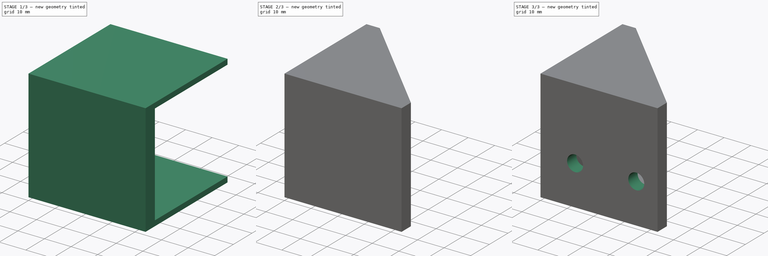
[diagram: build sequence overview — one tinted view per stage of 3, left to right]
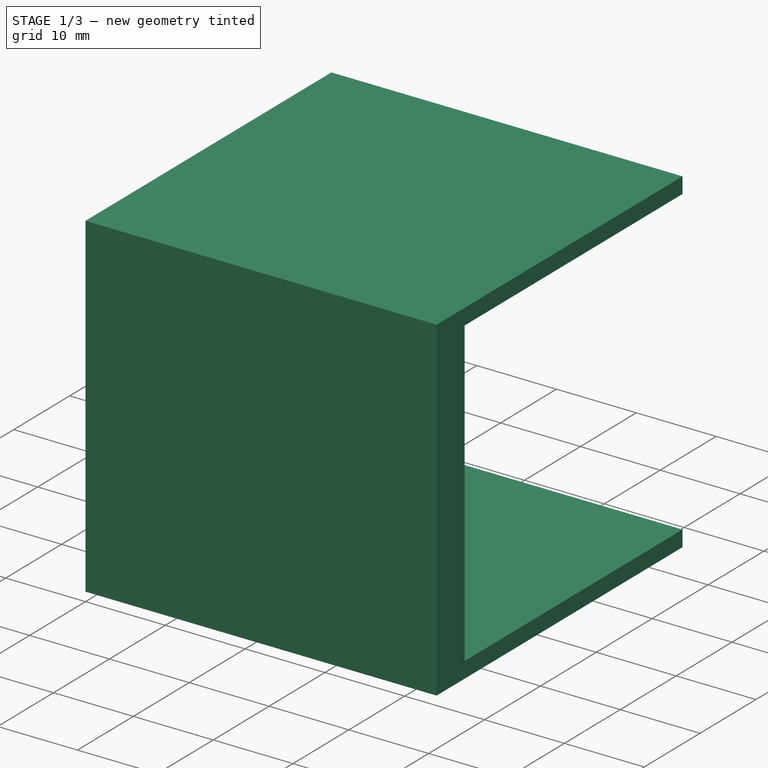
[diagram: stage 1 of 3 — iso view after this stage's code; geometry added in this stage tinted green]
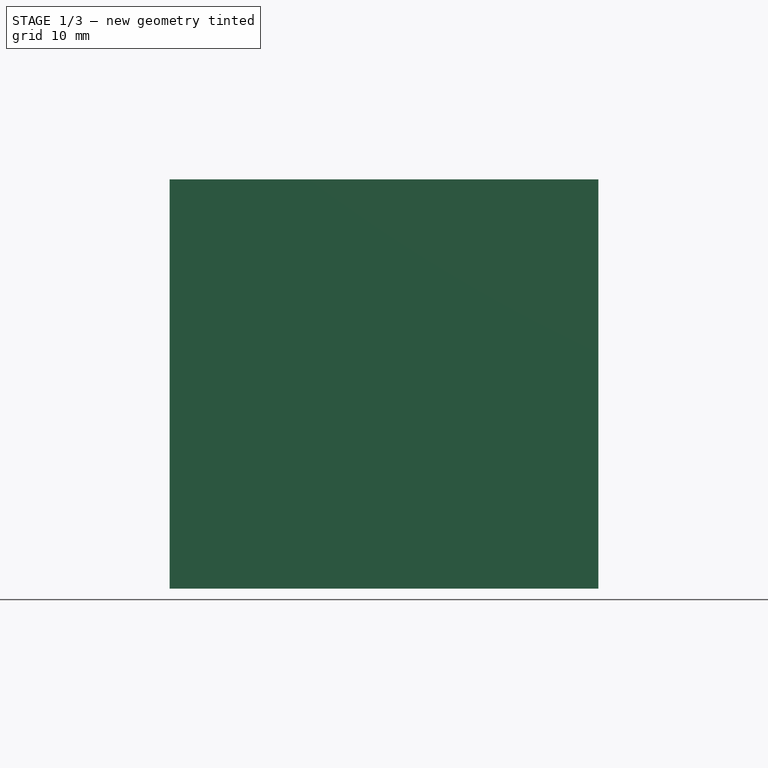
[diagram: stage 1 of 3 — front view after this stage's code; geometry added in this stage tinted green]
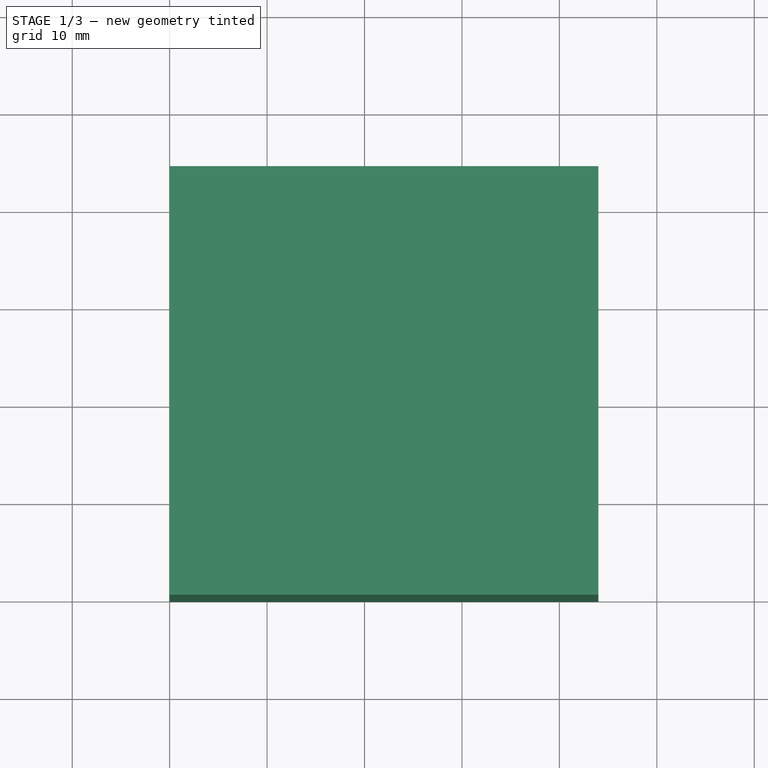
[diagram: stage 1 of 3 — top view after this stage's code; geometry added in this stage tinted green]
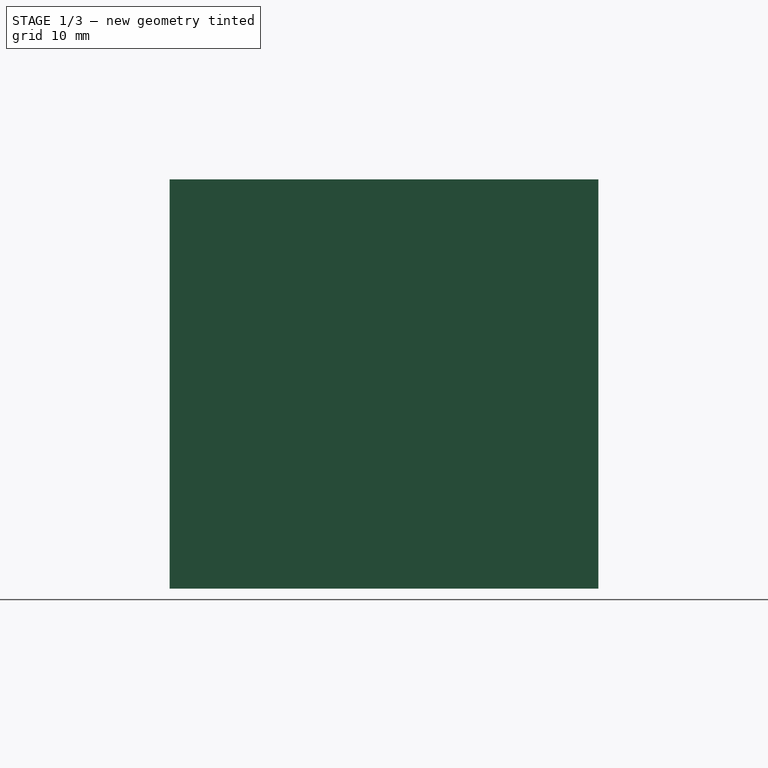
[diagram: stage 1 of 3 — right view after this stage's code; geometry added in this stage tinted green]
FCSTD DOCUMENT  (FreeCAD 0.18R14555 (Git shallow))
Label: stepper-mount
License: All rights reserved
LicenseURL: http://en.wikipedia.org/wiki/All_rights_reserved
objects: Sketcher::SketchObject×5, PartDesign::Pocket×4, PartDesign::Pad×1, PartDesign::Body×1
note: 16 computed .brp shape members not serialized (recipe doc carries the construction recipe); baked Part::Feature solids carry a one-line shape summary decoded from their .brp

FEATURE [Sketcher::SketchObject] Sketch
  MapMode = 5
  Placement = pos=(0,0,0) rot=(0.57735,0.57735,0.57735;2.0944rad)
  Support = -> [YZ_Plane]
  sketch-geometry (21):
    g0: LineSegment [constr] StartX=0 StartY=6.86245e-05 StartZ=0 EndX=42 EndY=6.86245e-05 EndZ=0
    g1: LineSegment [constr] StartX=42 StartY=6.86245e-05 StartZ=0 EndX=42 EndY=42.0001 EndZ=0
    g2: LineSegment [constr] StartX=42 StartY=42.0001 StartZ=0 EndX=0 EndY=42.0001 EndZ=0
    g3: LineSegment [constr] StartX=0 StartY=42.0001 StartZ=0 EndX=0 EndY=6.86245e-05 EndZ=0
    g4: LineSegment StartX=0 StartY=0 StartZ=0 EndX=44 EndY=0 EndZ=0
    g5: LineSegment StartX=44 StartY=0 StartZ=0 EndX=44 EndY=42.0001 EndZ=0
    g6: LineSegment StartX=44 StartY=42.0001 StartZ=0 EndX=0 EndY=42.0001 EndZ=0
    g7: LineSegment StartX=0 StartY=42.0001 StartZ=0 EndX=0 EndY=0 EndZ=0
    g8: LineSegment [constr] StartX=0 StartY=42.0001 StartZ=0 EndX=44 EndY=42.0001 EndZ=0
    g9: LineSegment [constr] StartX=0 StartY=6.86245e-05 StartZ=0 EndX=44 EndY=0 EndZ=0
    g10: LineSegment [constr] StartX=5.5 StartY=36.5001 StartZ=0 EndX=36.5 EndY=36.5001 EndZ=0
    g11: LineSegment [constr] StartX=36.5 StartY=36.5001 StartZ=0 EndX=36.5 EndY=5.50007 EndZ=0
    g12: LineSegment [constr] StartX=36.5 StartY=5.50007 StartZ=0 EndX=5.5 EndY=5.50007 EndZ=0
    g13: LineSegment [constr] StartX=5.5 StartY=5.50007 StartZ=0 EndX=5.5 EndY=36.5001 EndZ=0
    g14: LineSegment [constr] StartX=5.5 StartY=36.5001 StartZ=0 EndX=0 EndY=42.0001 EndZ=0
    g15: LineSegment [constr] StartX=5.5 StartY=5.50007 StartZ=0 EndX=0 EndY=6.86245e-05 EndZ=0
    g16: LineSegment [constr] StartX=36.5 StartY=36.5001 StartZ=0 EndX=42 EndY=42.0001 EndZ=0
    g17: Circle [constr] CenterX=5.5 CenterY=36.5001 CenterZ=0 NormalX=0 NormalY=0 NormalZ=1 AngleXU=0 Radius=2.5
    g18: Circle [constr] CenterX=36.5 CenterY=36.5001 CenterZ=0 NormalX=0 NormalY=0 NormalZ=1 AngleXU=0 Radius=2.5
    g19: Circle [constr] CenterX=5.5 CenterY=5.50007 CenterZ=0 NormalX=0 NormalY=0 NormalZ=1 AngleXU=0 Radius=2.5
    g20: Circle [constr] CenterX=36.5 CenterY=5.50007 CenterZ=0 NormalX=0 NormalY=0 NormalZ=1 AngleXU=0 Radius=2.5
  constraints (53):
    c: Coincident(g0,g1)
    c: Coincident(g1,g2)
    c: Coincident(g2,g3)
    c: Coincident(g3,g0)
    c: Horizontal(g0)
    c: Horizontal(g2)
    c: Vertical(g1)
    c: Vertical(g3)
    c: Equal(g3,g2)
    c: DistanceX(g2,g2) = 42
    c: Coincident(g4,g5)
    c: Coincident(g5,g6)
    c: Coincident(g6,g7)
    c: Coincident(g7,g4)
    c: Horizontal(g4)
    c: Horizontal(g6)
    c: Vertical(g5)
    c: Vertical(g7)
    c: PointOnObject(g0,g7)
    c: Coincident(g8,g2)
    c: Coincident(g8,g5)
    c: Coincident(g9,g0)
    c: Coincident(g9,g4)
    c: Equal(g9,g8)
    c: Coincident(g10,g11)
    c: Coincident(g11,g12)
    c: Coincident(g12,g13)
    c: Coincident(g13,g10)
    c: Horizontal(g10)
    c: Horizontal(g12)
    c: Vertical(g11)
    c: Vertical(g13)
    c: Equal(g13,g10)
    c: Coincident(g14,g10)
    c: Coincident(g14,g2)
    c: Coincident(g15,g12)
    c: Coincident(g15,g0)
    c: Coincident(g16,g10)
    c: Coincident(g16,g1)
    c: Equal(g16,g14)
    c: Equal(g14,g15)
    c: DistanceY(g13,g13) = 31
    c: Coincident(g17,g10)
    c: Coincident(g18,g10)
    c: Coincident(g19,g12)
    c: Coincident(g20,g11)
    c: Equal(g18,g17)
    c: Equal(g17,g19)
    c: Equal(g19,g20)
    c: Radius(g17) = 2.5
    c: DistanceY(g10,g6) = 5.5
    c: DistanceX(g11,g4) = 7.5
    c: Coincident(g4,g-1)
FEATURE [PartDesign::Pad] Pad
  Length = 44
  Length2 = 100
  Placement = pos=(0,0,0) rot=(0.57735,0.57735,0.57735;2.0944rad)
  Profile = -> Sketch
  Type = 0
FEATURE [Sketcher::SketchObject] Sketch001
  ExternalGeometry = -> [Pad]
  MapMode = 5
  Placement = pos=(44,-9.7e-15,9.7e-15) rot=(0.57735,0.57735,0.57735;2.0944rad)
  Support = -> [Pad]
  sketch-geometry (6):
    g0: LineSegment StartX=44 StartY=40.0001 StartZ=0 EndX=5 EndY=40.0001 EndZ=0
    g1: LineSegment StartX=5 StartY=40.0001 StartZ=0 EndX=5 EndY=2 EndZ=0
    g2: LineSegment StartX=5 StartY=2 StartZ=0 EndX=44 EndY=2 EndZ=0
    g3: LineSegment StartX=44 StartY=2 StartZ=0 EndX=44 EndY=40.0001 EndZ=0
    g4: LineSegment [constr] StartX=-1e-14 StartY=42.0001 StartZ=0 EndX=44 EndY=40.0001 EndZ=0
    g5: LineSegment [constr] StartX=44 StartY=2 StartZ=0 EndX=0 EndY=0 EndZ=0
  constraints (16):
    c: Coincident(g0,g1)
    c: Coincident(g1,g2)
    c: Coincident(g2,g3)
    c: Coincident(g3,g0)
    c: Horizontal(g0)
    c: Horizontal(g2)
    c: Vertical(g1)
    c: Vertical(g3)
    c: PointOnObject(g0,g-3)
    c: Coincident(g4,g-4)
    c: Coincident(g4,g0)
    c: Coincident(g5,g2)
    c: Coincident(g5,g-1)
    c: Equal(g5,g4)
    c: DistanceY(g0,g-3) = 2
    c: DistanceX(g4,g0) = 5
FEATURE [PartDesign::Pocket] Pocket
  BaseFeature = -> Pad
  Length = 39
  Length2 = 100
  Placement = pos=(0,0,0) rot=(0.57735,0.57735,0.57735;2.0944rad)
  Profile = -> Sketch001
  Type = 0
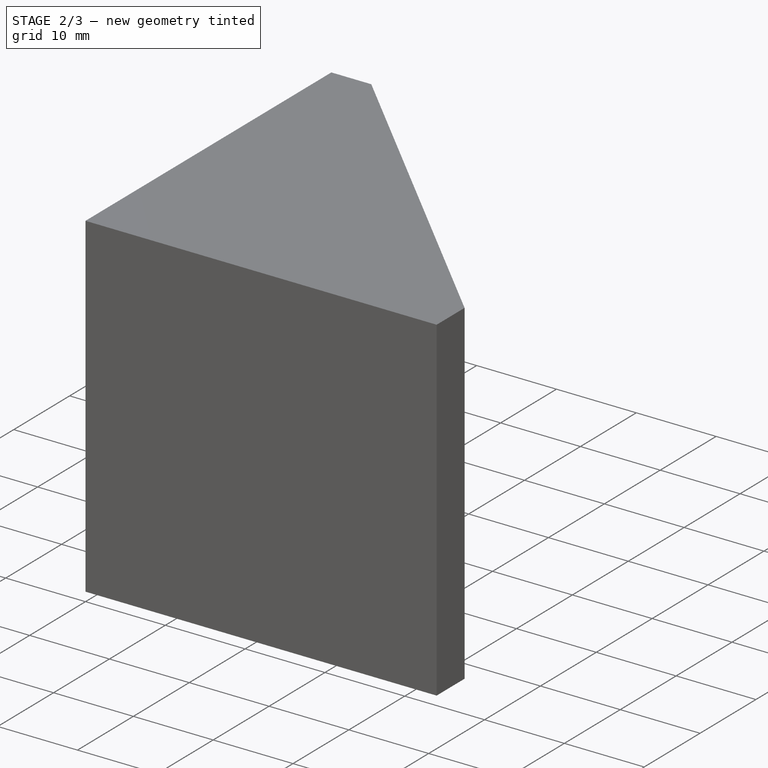
[diagram: stage 2 of 3 — iso view after this stage's code; geometry added in this stage tinted green]
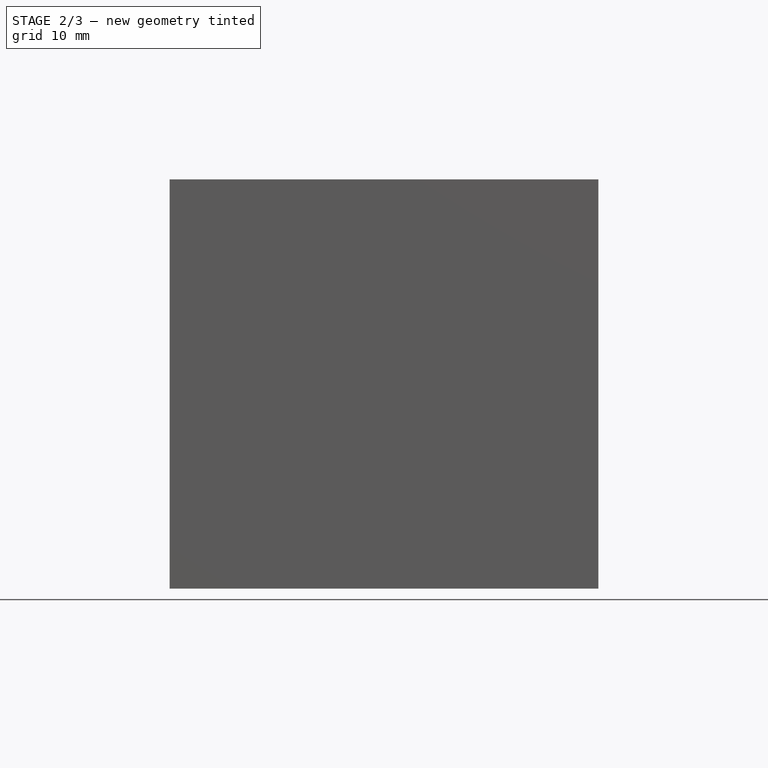
[diagram: stage 2 of 3 — front view after this stage's code; geometry added in this stage tinted green]
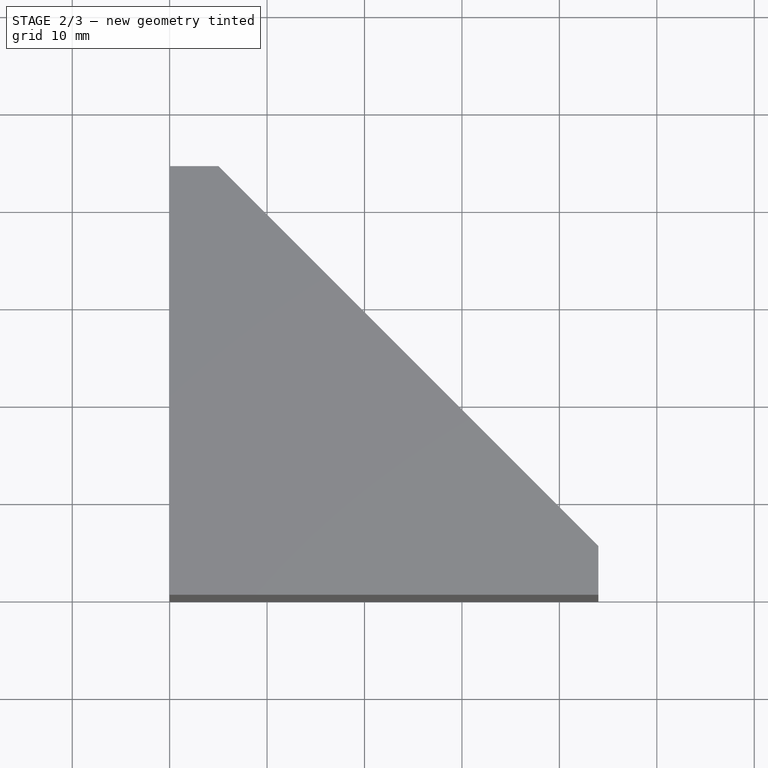
[diagram: stage 2 of 3 — top view after this stage's code; geometry added in this stage tinted green]
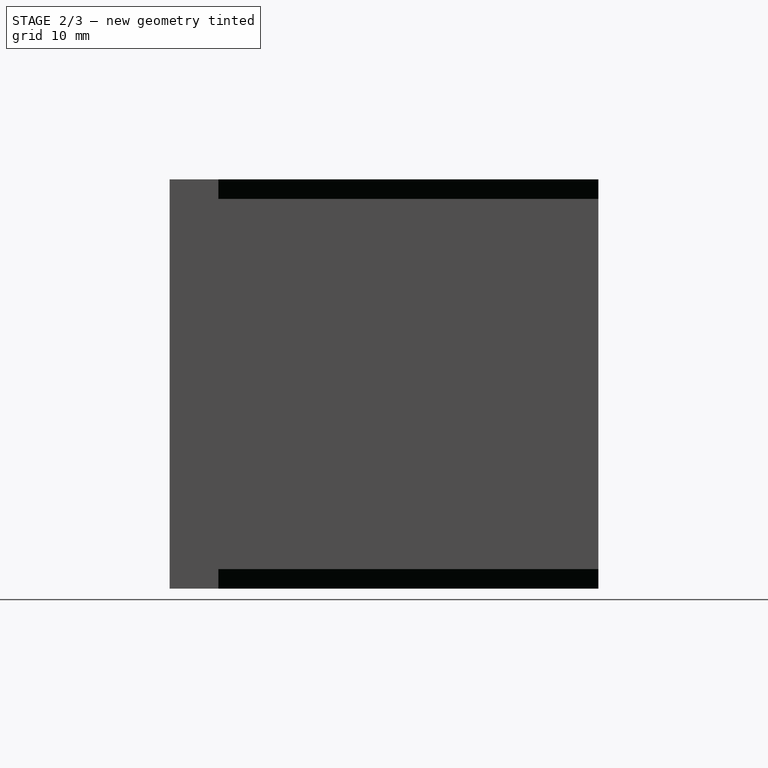
[diagram: stage 2 of 3 — right view after this stage's code; geometry added in this stage tinted green]
FEATURE [Sketcher::SketchObject] Sketch002
  ExternalGeometry = -> [Pocket]
  MapMode = 5
  Placement = pos=(-1.18e-14,1.85e-14,42.0001) rot=(0,0,-1;1.5708rad)
  Support = -> [Pocket]
  sketch-geometry (3):
    g0: LineSegment StartX=-44 StartY=5 StartZ=0 EndX=-44 EndY=44 EndZ=0
    g1: LineSegment StartX=-44 StartY=44 StartZ=0 EndX=-5 EndY=44 EndZ=0
    g2: LineSegment StartX=-5 StartY=44 StartZ=0 EndX=-44 EndY=5 EndZ=0
  constraints (6):
    c: Coincident(g0,g1)
    c: Coincident(g1,g2)
    c: Coincident(g2,g0)
    c: Coincident(g0,g-4)
    c: Coincident(g0,g-4)
    c: Coincident(g1,g-3)
FEATURE [PartDesign::Pocket] Pocket001
  BaseFeature = -> Pocket
  Length = 5
  Length2 = 100
  Placement = pos=(0,0,0) rot=(0.57735,0.57735,0.57735;2.0944rad)
  Profile = -> Sketch002
  Type = 1
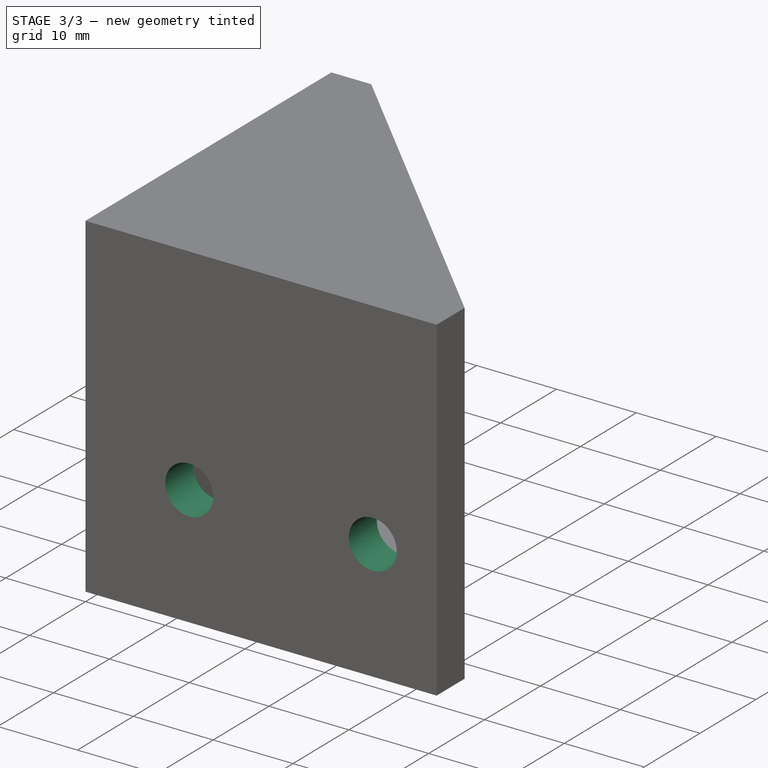
[diagram: stage 3 of 3 — iso view after this stage's code; geometry added in this stage tinted green]
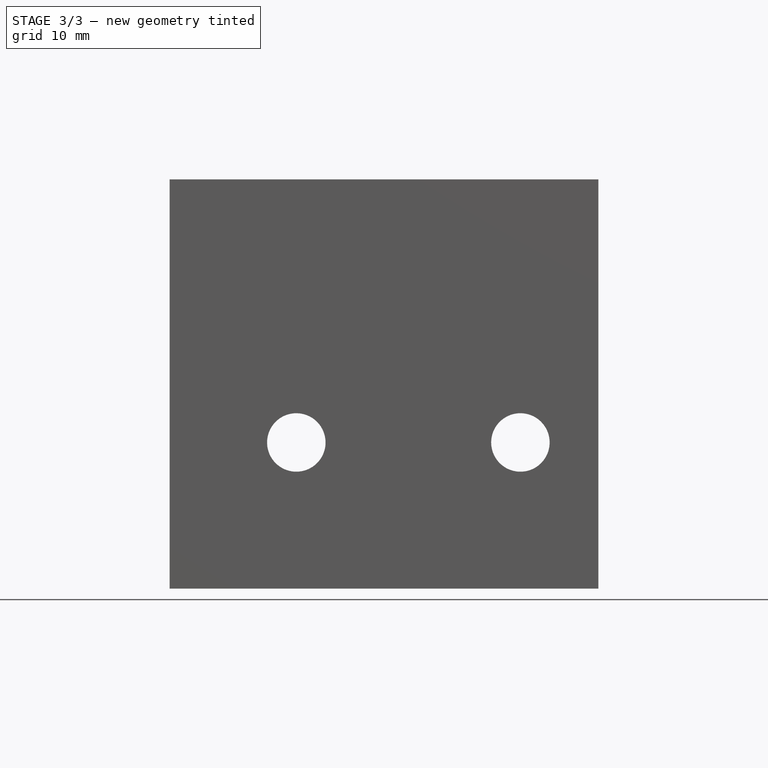
[diagram: stage 3 of 3 — front view after this stage's code; geometry added in this stage tinted green]
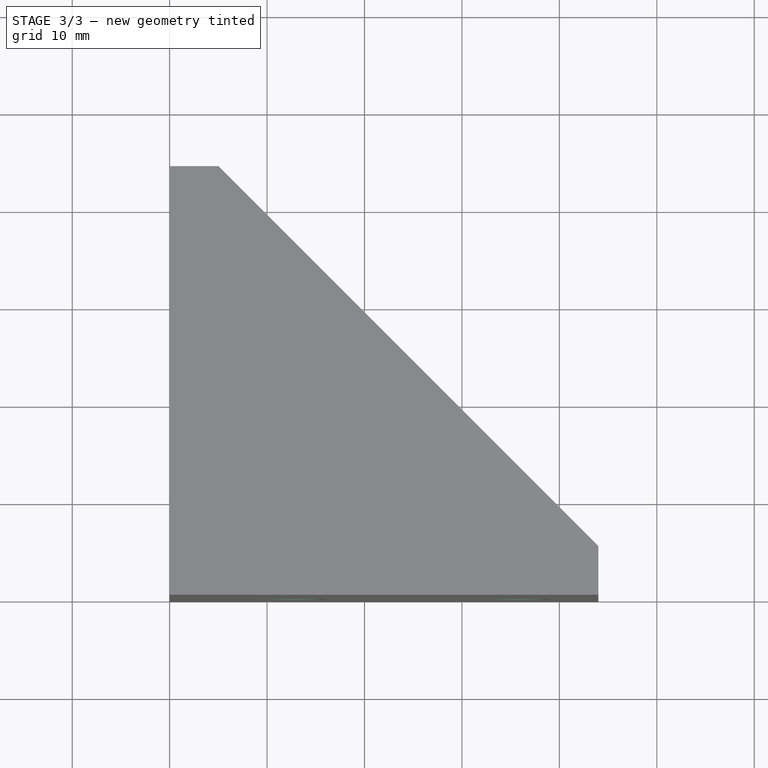
[diagram: stage 3 of 3 — top view after this stage's code; geometry added in this stage tinted green]
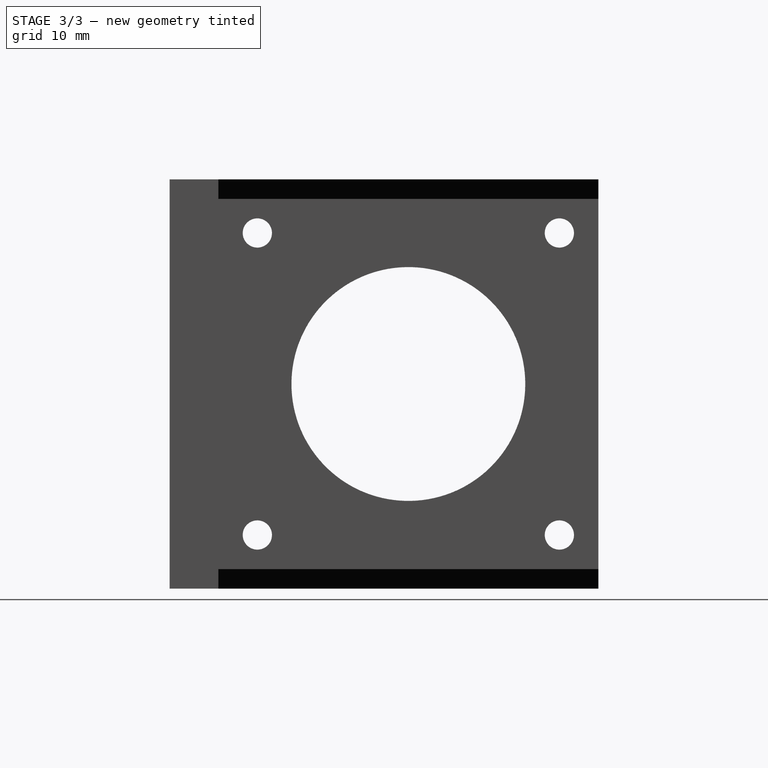
[diagram: stage 3 of 3 — right view after this stage's code; geometry added in this stage tinted green]
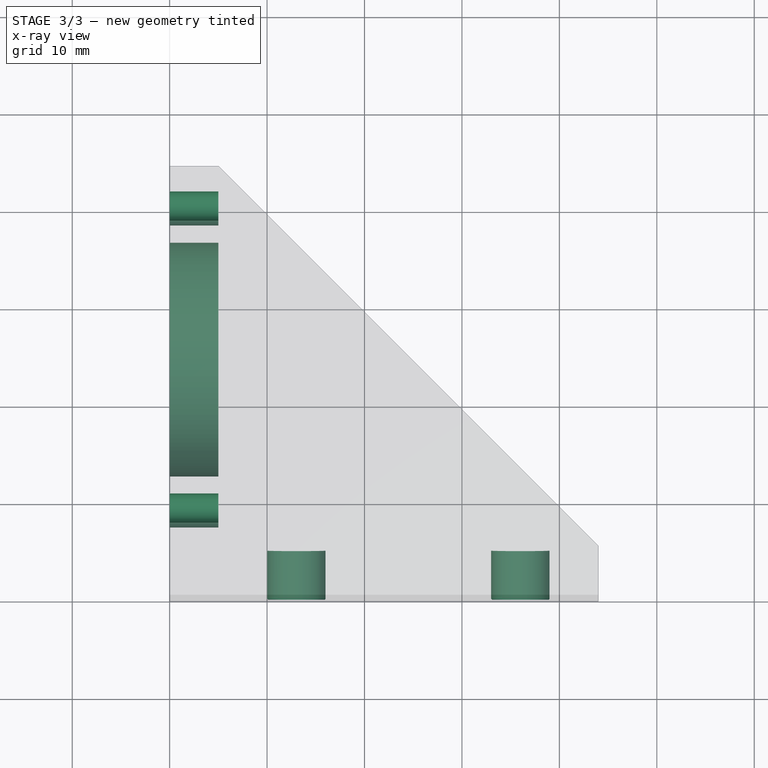
[diagram: stage 3 of 3 — x-ray composite at the top view; earlier geometry ghosted, this stage's added geometry solid]
FEATURE [Sketcher::SketchObject] Sketch003
  ExternalGeometry = -> [Pocket001]
  MapMode = 5
  Placement = pos=(0,0,0) rot=(0.57735,0.57735,-0.57735;4.18879rad)
  Support = -> [Pocket001]
  sketch-geometry (14):
    g0: LineSegment [constr] StartX=9 StartY=-5.50003 StartZ=0 EndX=40 EndY=-5.50003 EndZ=0
    g1: LineSegment [constr] StartX=40 StartY=-5.50003 StartZ=0 EndX=40 EndY=-36.5 EndZ=0
    g2: LineSegment [constr] StartX=40 StartY=-36.5 StartZ=0 EndX=9 EndY=-36.5 EndZ=0
    g3: LineSegment [constr] StartX=9 StartY=-36.5 StartZ=0 EndX=9 EndY=-5.50003 EndZ=0
    g4: LineSegment [constr] StartX=5 StartY=-40.0001 StartZ=0 EndX=9 EndY=-36.5 EndZ=0
    g5: LineSegment [constr] StartX=9 StartY=-5.50003 StartZ=0 EndX=5 EndY=-2 EndZ=0
    g6: LineSegment [constr] StartX=40 StartY=-5.50003 StartZ=0 EndX=44 EndY=-2 EndZ=0
    g7: Circle CenterX=9 CenterY=-5.50003 CenterZ=0 NormalX=0 NormalY=0 NormalZ=1 AngleXU=0 Radius=1.5
    g8: Circle CenterX=40 CenterY=-5.50003 CenterZ=0 NormalX=0 NormalY=0 NormalZ=1 AngleXU=0 Radius=1.5
    g9: Circle CenterX=9 CenterY=-36.5 CenterZ=0 NormalX=0 NormalY=0 NormalZ=1 AngleXU=0 Radius=1.5
    g10: Circle CenterX=40 CenterY=-36.5 CenterZ=0 NormalX=0 NormalY=0 NormalZ=1 AngleXU=0 Radius=1.5
    g11: LineSegment [constr] StartX=9 StartY=-5.50003 StartZ=0 EndX=40 EndY=-36.5 EndZ=0
    g12: LineSegment [constr] StartX=9 StartY=-36.5 StartZ=0 EndX=40 EndY=-5.50003 EndZ=0
    g13: Circle CenterX=24.5 CenterY=-21 CenterZ=0 NormalX=0 NormalY=0 NormalZ=1 AngleXU=0 Radius=12
  constraints (34):
    c: DistanceY(g-3,g-3) = 38.0001
    c: Coincident(g0,g1)
    c: Coincident(g1,g2)
    c: Coincident(g2,g3)
    c: Coincident(g3,g0)
    c: Horizontal(g0)
    c: Horizontal(g2)
    c: Vertical(g1)
    c: Vertical(g3)
    c: Equal(g3,g0)
    c: DistanceX(g0,g0) = 31
    c: Coincident(g4,g-3)
    c: Coincident(g4,g2)
    c: Coincident(g5,g0)
    c: Coincident(g5,g-3)
    c: Coincident(g6,g0)
    c: Coincident(g6,g-4)
    c: Equal(g6,g5)
    c: Equal(g5,g4)
    c: Coincident(g7,g0)
    c: Coincident(g8,g0)
    c: Coincident(g9,g2)
    c: Coincident(g10,g1)
    c: Equal(g10,g9)
    c: Equal(g9,g7)
    c: Equal(g7,g8)
    c: Radius(g7) = 1.5
    c: Coincident(g11,g7)
    c: Coincident(g11,g10)
    c: Coincident(g12,g9)
    c: Coincident(g12,g8)
    c: PointOnObject(g13,g11)
    c: PointOnObject(g13,g12)
    c: Radius(g13) = 12
FEATURE [PartDesign::Pocket] Pocket002
  BaseFeature = -> Pocket001
  Length = 5
  Length2 = 100
  Placement = pos=(0,0,0) rot=(0.57735,0.57735,0.57735;2.0944rad)
  Profile = -> Sketch003
  Type = 1
FEATURE [Sketcher::SketchObject] Sketch004
  ExternalGeometry = -> [Pocket002]
  MapMode = 5
  Placement = pos=(1.1e-15,5,-5e-16) rot=(0.57735,0.57735,0.57735;4.18879rad)
  Support = -> [Pocket002]
  sketch-geometry (7):
    g0: Circle CenterX=15 CenterY=36 CenterZ=0 NormalX=0 NormalY=0 NormalZ=1 AngleXU=0 Radius=3
    g1: Circle CenterX=15 CenterY=13 CenterZ=0 NormalX=0 NormalY=0 NormalZ=1 AngleXU=0 Radius=3
    g2: LineSegment [constr] StartX=15 StartY=13 StartZ=0 EndX=15 EndY=36 EndZ=0
    g3: LineSegment [constr] StartX=15 StartY=36 StartZ=0 EndX=2 EndY=44 EndZ=0
    g4: LineSegment [constr] StartX=15 StartY=13 StartZ=0 EndX=2 EndY=5 EndZ=0
    g5: Circle [constr] CenterX=15 CenterY=36 CenterZ=0 NormalX=0 NormalY=0 NormalZ=1 AngleXU=0 Radius=6.5
    g6: Circle [constr] CenterX=15 CenterY=13 CenterZ=0 NormalX=0 NormalY=0 NormalZ=1 AngleXU=0 Radius=6.5
  constraints (16):
    c: Coincident(g2,g1)
    c: Coincident(g2,g0)
    c: Vertical(g2)
    c: Coincident(g3,g0)
    c: Coincident(g3,g-4)
    c: Coincident(g4,g1)
    c: Coincident(g4,g-3)
    c: Equal(g3,g4)
    c: Equal(g1,g0)
    c: Radius(g0) = 3
    c: Coincident(g5,g0)
    c: Coincident(g6,g1)
    c: Equal(g6,g5)
    c: Radius(g5) = 6.5
    c: DistanceY(g0,g3) = 8
    c: DistanceX(g-1,g0) = 15
FEATURE [PartDesign::Pocket] Pocket003
  BaseFeature = -> Pocket002
  Length = 5
  Length2 = 100
  Placement = pos=(0,0,0) rot=(0.57735,0.57735,0.57735;2.0944rad)
  Profile = -> Sketch004
  Type = 1
FEATURE [PartDesign::Body] Body
  Group = -> [Sketch,Pad,Sketch001,Pocket,Sketch002,Pocket001,Sketch003,Pocket002,Sketch004,Pocket003]
  Origin = -> Origin
  Tip = -> Pocket003
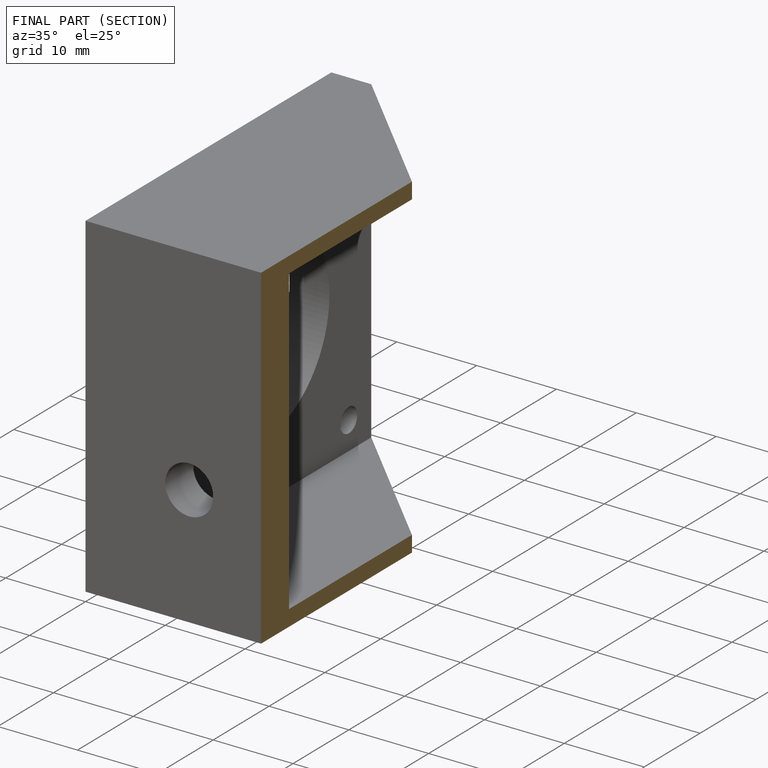
[diagram: finished part — half-section view (interior)]
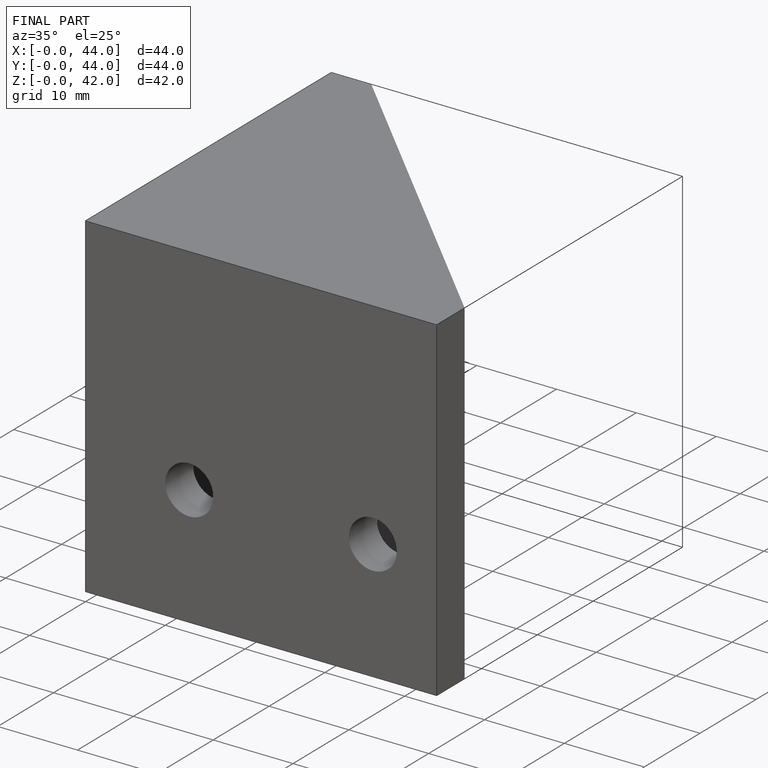
[diagram: finished part — iso view with bounding-box wireframe]
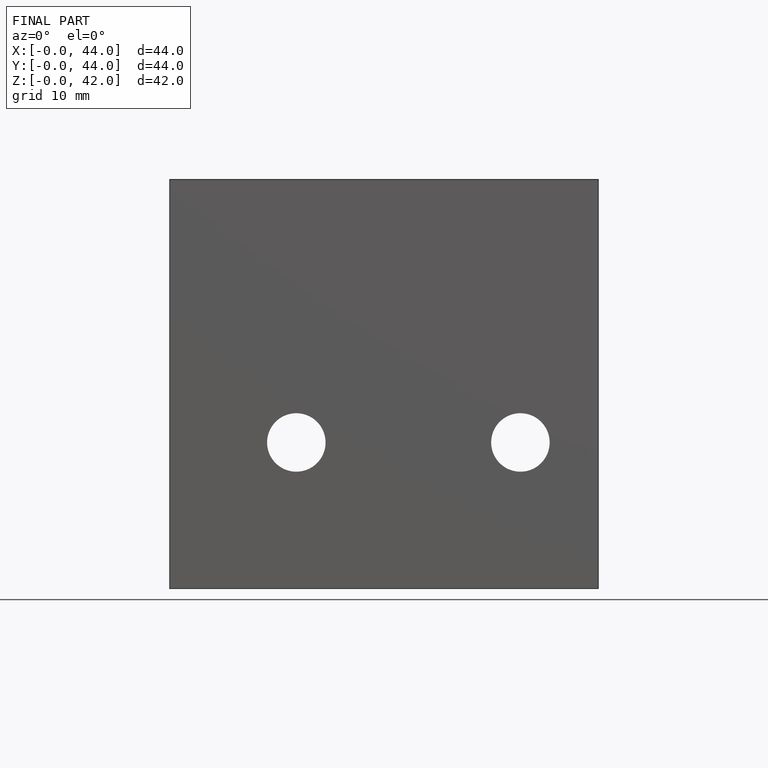
[diagram: finished part — front view with bounding-box wireframe]
